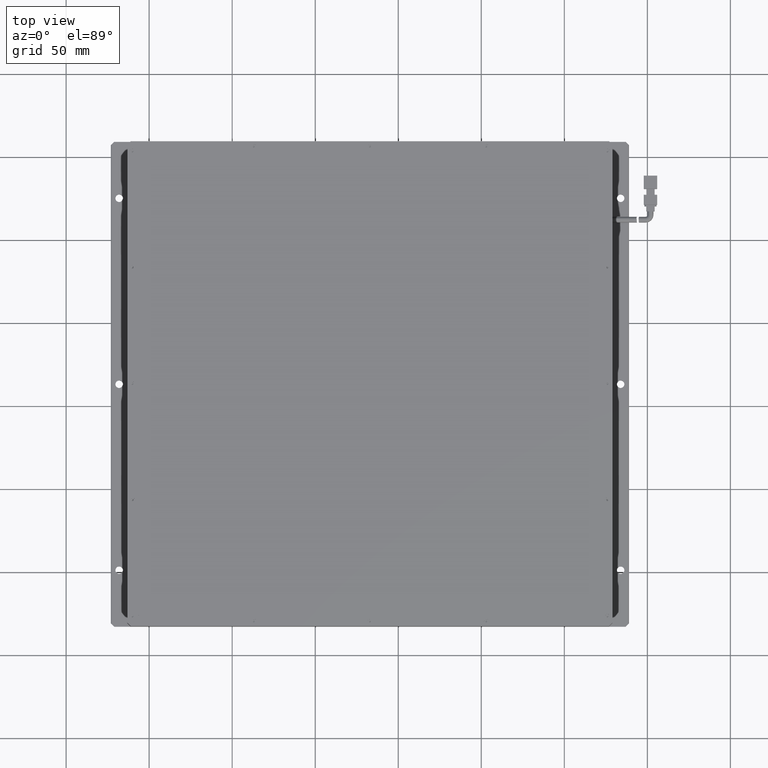
[diagram: clean part render]
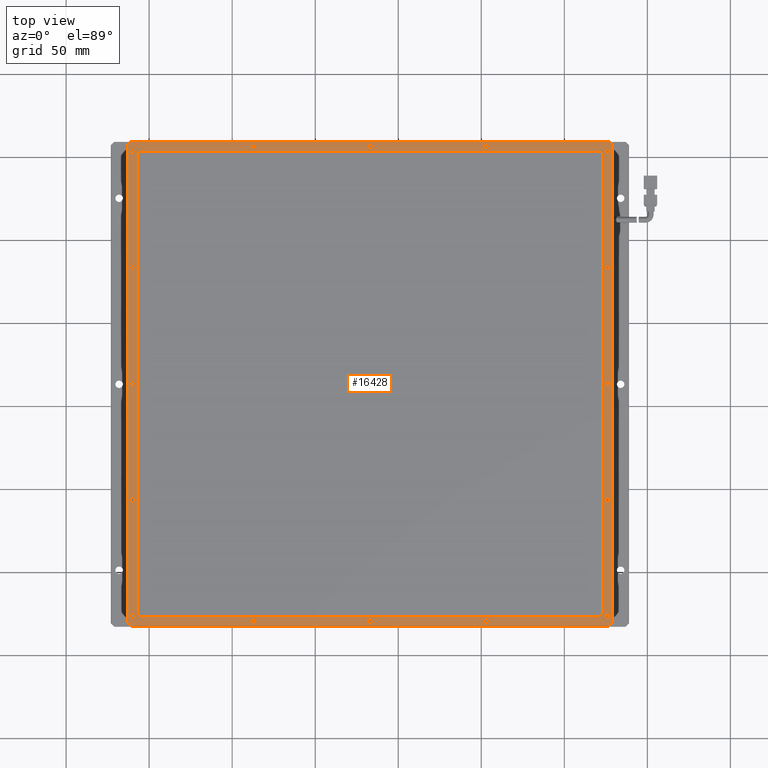
[diagram: same view with one face highlighted and labeled with its STEP entity id]
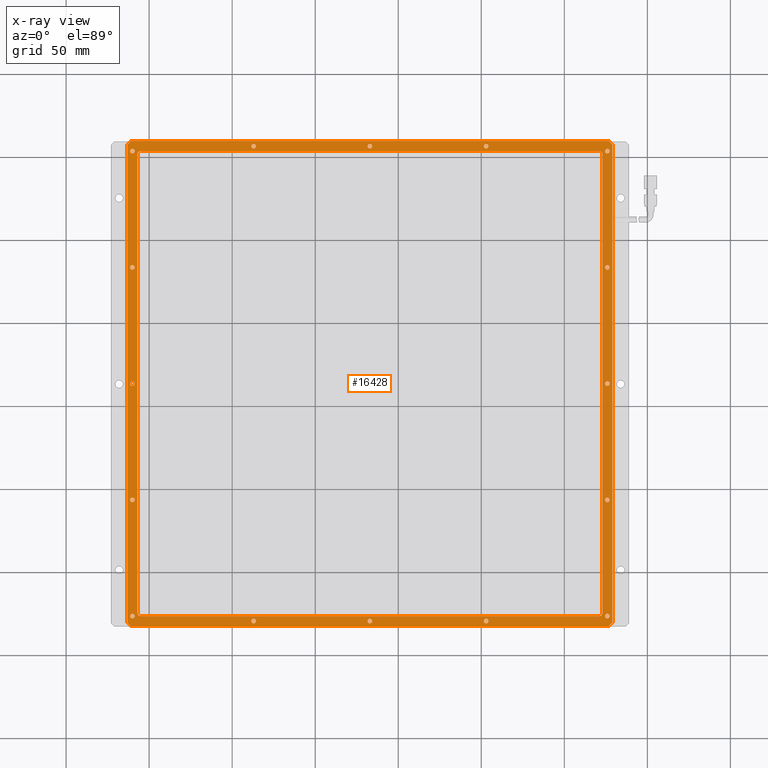
[diagram: x-ray of the same camera — body ghosted, the highlighted face saturated]
A machine part, top view. The second image highlights one B-rep face of the part: STEP entity #16428.
The next image is the same camera in x-ray: the body ghosted, the highlighted face saturated — about 0% of this face is hidden behind the body in this view.
In plain terms, the highlighted planar face has unit normal (0, 0, 1).
Its self-contained STEP definition (entity closure, byte-faithful):
#65 = EDGE_CURVE ( 'NONE', #15558, #3173, #4752, .T. ) ;
#90 = EDGE_LOOP ( 'NONE', ( #13151, #14345 ) ) ;
#107 = EDGE_CURVE ( 'NONE', #5867, #6713, #7100, .T. ) ;
#135 = CARTESIAN_POINT ( 'NONE',  ( 175.9193228736581900, 13.26980456922655100, 10.49999999997180600 ) ) ;
#170 = EDGE_LOOP ( 'NONE', ( #23553, #19507 ) ) ;
#189 = DIRECTION ( 'NONE',  ( 1.000000000000000000, 0.0000000000000000000, 0.0000000000000000000 ) ) ;
#194 = DIRECTION ( 'NONE',  ( 1.000000000000000000, 0.0000000000000000000, 0.0000000000000000000 ) ) ;
#255 = ORIENTED_EDGE ( 'NONE', *, *, #19851, .T. ) ;
#256 = DIRECTION ( 'NONE',  ( 1.000000000000000000, 0.0000000000000000000, 0.0000000000000000000 ) ) ;
#271 = AXIS2_PLACEMENT_3D ( 'NONE', #17010, #4142, #19164 ) ;
#475 = EDGE_LOOP ( 'NONE', ( #22533, #15903 ) ) ;
#571 = ORIENTED_EDGE ( 'NONE', *, *, #7487, .T. ) ;
#792 = CARTESIAN_POINT ( 'NONE',  ( -111.4806771263418900, -126.7301954307734600, 10.49999999997180600 ) ) ;
#796 = CIRCLE ( 'NONE', #19055, 1.399999999999984600 ) ;
#810 = ORIENTED_EDGE ( 'NONE', *, *, #4935, .T. ) ;
#964 = DIRECTION ( 'NONE',  ( -1.000000000000000000, -0.0000000000000000000, -0.0000000000000000000 ) ) ;
#979 = CARTESIAN_POINT ( 'NONE',  ( 174.5193228736581500, -56.73019543077345600, 10.49999999997180600 ) ) ;
#1127 = CARTESIAN_POINT ( 'NONE',  ( -38.48067712634186000, 156.2698045692266400, 10.49999999997180600 ) ) ;
#1288 = EDGE_CURVE ( 'NONE', #23236, #23593, #796, .T. ) ;
#1409 = VECTOR ( 'NONE', #5481, 1000.000000000000000 ) ;
#1427 = DIRECTION ( 'NONE',  ( -0.0000000000000000000, -1.000000000000000000, -0.0000000000000000000 ) ) ;
#1482 = AXIS2_PLACEMENT_3D ( 'NONE', #22583, #9754, #24757 ) ;
#1566 = ORIENTED_EDGE ( 'NONE', *, *, #20308, .T. ) ;
#1774 = DIRECTION ( 'NONE',  ( 1.000000000000000000, 0.0000000000000000000, 0.0000000000000000000 ) ) ;
#1783 = CARTESIAN_POINT ( 'NONE',  ( -113.0806771263418400, -130.7301954307733600, 10.49999999997180600 ) ) ;
#1794 = CARTESIAN_POINT ( 'NONE',  ( 178.9193228736581300, -130.7301954307733600, 10.49999999997180600 ) ) ;
#1916 = DIRECTION ( 'NONE',  ( -0.0000000000000000000, -0.0000000000000000000, -1.000000000000000000 ) ) ;
#1940 = VERTEX_POINT ( 'NONE', #20210 ) ;
#1953 = CARTESIAN_POINT ( 'NONE',  ( 170.9193228736581300, -126.7301954307734100, 10.49999999997180600 ) ) ;
#2080 = EDGE_LOOP ( 'NONE', ( #20955, #25599 ) ) ;
#2109 = ORIENTED_EDGE ( 'NONE', *, *, #14847, .T. ) ;
#2128 = FACE_OUTER_BOUND ( 'NONE', #7449, .T. ) ;
#2147 = ORIENTED_EDGE ( 'NONE', *, *, #26208, .T. ) ;
#2162 = DIRECTION ( 'NONE',  ( 1.000000000000000000, 0.0000000000000000000, 0.0000000000000000000 ) ) ;
#2201 = CARTESIAN_POINT ( 'NONE',  ( -107.0806771263419000, -124.7301954307734100, 10.49999999997180600 ) ) ;
#2219 = DIRECTION ( 'NONE',  ( 0.0000000000000000000, 0.0000000000000000000, 1.000000000000000000 ) ) ;
#2279 = DIRECTION ( 'NONE',  ( 1.000000000000000000, 0.0000000000000000000, 0.0000000000000000000 ) ) ;
#2342 = AXIS2_PLACEMENT_3D ( 'NONE', #135, #15118, #2279 ) ;
#2375 = CIRCLE ( 'NONE', #27503, 1.399999999999984600 ) ;
#2405 = DIRECTION ( 'NONE',  ( 1.000000000000000000, 0.0000000000000000000, 0.0000000000000000000 ) ) ;
#2503 = DIRECTION ( 'NONE',  ( -0.0000000000000000000, -0.0000000000000000000, -1.000000000000000000 ) ) ;
#2545 = CARTESIAN_POINT ( 'NONE',  ( -110.0806771263419000, 153.2698045692265800, 10.49999999997180600 ) ) ;
#2641 = DIRECTION ( 'NONE',  ( -0.0000000000000000000, -0.0000000000000000000, -1.000000000000000000 ) ) ;
#2812 = FACE_BOUND ( 'NONE', #21852, .T. ) ;
#3038 = EDGE_CURVE ( 'NONE', #3173, #15558, #2375, .T. ) ;
#3173 = VERTEX_POINT ( 'NONE', #9770 ) ;
#3221 = CARTESIAN_POINT ( 'NONE',  ( 32.91932287365813200, 156.2698045692266400, 10.49999999997180600 ) ) ;
#3349 = EDGE_CURVE ( 'NONE', #4406, #6596, #5385, .T. ) ;
#3353 = EDGE_CURVE ( 'NONE', #13961, #17208, #11050, .T. ) ;
#3356 = VECTOR ( 'NONE', #7378, 1000.000000000000100 ) ;
#3418 = AXIS2_PLACEMENT_3D ( 'NONE', #25809, #12991, #194 ) ;
#3478 = FACE_BOUND ( 'NONE', #19579, .T. ) ;
#3517 = VERTEX_POINT ( 'NONE', #13419 ) ;
#3526 = ORIENTED_EDGE ( 'NONE', *, *, #24342, .F. ) ;
#3544 = CARTESIAN_POINT ( 'NONE',  ( -108.6806771263419200, -56.73019543077345600, 10.49999999997180600 ) ) ;
#3563 = CARTESIAN_POINT ( 'NONE',  ( 175.9193228736581600, -56.73019543077345600, 10.49999999997180600 ) ) ;
#3570 = CARTESIAN_POINT ( 'NONE',  ( 178.9193228736581300, 157.2698045692266100, 10.49999999997180600 ) ) ;
#3583 = ORIENTED_EDGE ( 'NONE', *, *, #3878, .T. ) ;
#3645 = CARTESIAN_POINT ( 'NONE',  ( -111.0806771263419000, -132.7301954307733900, 10.49999999997180600 ) ) ;
#3693 = CARTESIAN_POINT ( 'NONE',  ( -111.4806771263418900, -56.73019543077345600, 10.49999999997180600 ) ) ;
#3698 = CARTESIAN_POINT ( 'NONE',  ( 175.9193228736581900, 153.2698045692265800, 10.49999999997180600 ) ) ;
#3711 = CARTESIAN_POINT ( 'NONE',  ( 174.5193228736581800, -126.7301954307734600, 10.49999999997180600 ) ) ;
#3727 = EDGE_CURVE ( 'NONE', #21084, #12656, #4675, .T. ) ;
#3730 = DIRECTION ( 'NONE',  ( 0.7071067811865425800, -0.7071067811865525700, -0.0000000000000000000 ) ) ;
#3878 = EDGE_CURVE ( 'NONE', #24389, #23634, #13712, .T. ) ;
#3973 = CARTESIAN_POINT ( 'NONE',  ( 102.9193228736581200, -129.7301954307734800, 10.49999999997180600 ) ) ;
#3977 = DIRECTION ( 'NONE',  ( 0.0000000000000000000, 0.0000000000000000000, 1.000000000000000000 ) ) ;
#4088 = AXIS2_PLACEMENT_3D ( 'NONE', #16839, #3977, #18991 ) ;
#4133 = VERTEX_POINT ( 'NONE', #26171 ) ;
#4142 = DIRECTION ( 'NONE',  ( 0.0000000000000000000, 0.0000000000000000000, 1.000000000000000000 ) ) ;
#4176 = CIRCLE ( 'NONE', #10422, 1.399999999999984600 ) ;
#4279 = VERTEX_POINT ( 'NONE', #21006 ) ;
#4406 = VERTEX_POINT ( 'NONE', #1953 ) ;
#4499 = VECTOR ( 'NONE', #12029, 1000.000000000000000 ) ;
#4675 = CIRCLE ( 'NONE', #9533, 1.399999999999984600 ) ;
#4752 = CIRCLE ( 'NONE', #22378, 1.399999999999984600 ) ;
#4880 = CARTESIAN_POINT ( 'NONE',  ( -110.0806771263419000, 83.26980456922657900, 10.49999999997180600 ) ) ;
#4926 = ORIENTED_EDGE ( 'NONE', *, *, #16945, .T. ) ;
#4935 = EDGE_CURVE ( 'NONE', #20945, #12337, #7637, .T. ) ;
#5073 = CARTESIAN_POINT ( 'NONE',  ( -111.0806771263417300, 159.2698045692266100, 10.49999999997180600 ) ) ;
#5112 = EDGE_LOOP ( 'NONE', ( #20126, #10475, #12967, #17900, #17305, #6923, #3526, #5454 ) ) ;
#5361 = EDGE_CURVE ( 'NONE', #23634, #24389, #27510, .T. ) ;
#5371 = DIRECTION ( 'NONE',  ( 1.000000000000000000, 0.0000000000000000000, 0.0000000000000000000 ) ) ;
#5385 = CIRCLE ( 'NONE', #20688, 2.000000000000001800 ) ;
#5430 = EDGE_CURVE ( 'NONE', #13523, #20550, #27136, .T. ) ;
#5454 = ORIENTED_EDGE ( 'NONE', *, *, #26506, .F. ) ;
#5472 = EDGE_CURVE ( 'NONE', #14740, #16351, #16457, .T. ) ;
#5481 = DIRECTION ( 'NONE',  ( -0.0000000000000000000, -1.000000000000000000, -0.0000000000000000000 ) ) ;
#5525 = EDGE_LOOP ( 'NONE', ( #2109, #17712 ) ) ;
#5625 = EDGE_CURVE ( 'NONE', #27045, #10380, #15407, .T. ) ;
#5642 = AXIS2_PLACEMENT_3D ( 'NONE', #6162, #21149, #8303 ) ;
#5867 = VERTEX_POINT ( 'NONE', #8862 ) ;
#5911 = CARTESIAN_POINT ( 'NONE',  ( -111.4806771263418900, 83.26980456922657900, 10.49999999997180600 ) ) ;
#6080 = VERTEX_POINT ( 'NONE', #3570 ) ;
#6116 = DIRECTION ( 'NONE',  ( 1.000000000000000000, 0.0000000000000000000, 0.0000000000000000000 ) ) ;
#6162 = CARTESIAN_POINT ( 'NONE',  ( 32.91932287365807500, -129.7301954307734800, 10.49999999997180600 ) ) ;
#6263 = CARTESIAN_POINT ( 'NONE',  ( 175.9193228736581900, 83.26980456922657900, 10.49999999997180600 ) ) ;
#6344 = LINE ( 'NONE', #14262, #11354 ) ;
#6459 = EDGE_CURVE ( 'NONE', #24256, #17071, #18075, .T. ) ;
#6471 = EDGE_LOOP ( 'NONE', ( #16628, #22951 ) ) ;
#6542 = CARTESIAN_POINT ( 'NONE',  ( 101.5193228736581300, -129.7301954307734800, 10.49999999997180600 ) ) ;
#6573 = VECTOR ( 'NONE', #16484, 1000.000000000000100 ) ;
#6576 = AXIS2_PLACEMENT_3D ( 'NONE', #2545, #2503, #2405 ) ;
#6581 = VERTEX_POINT ( 'NONE', #22282 ) ;
#6596 = VERTEX_POINT ( 'NONE', #22083 ) ;
#6649 = ORIENTED_EDGE ( 'NONE', *, *, #7406, .T. ) ;
#6667 = CIRCLE ( 'NONE', #16181, 1.399999999999984600 ) ;
#6713 = VERTEX_POINT ( 'NONE', #16545 ) ;
#6923 = ORIENTED_EDGE ( 'NONE', *, *, #21775, .F. ) ;
#7035 = DIRECTION ( 'NONE',  ( 1.000000000000000000, 0.0000000000000000000, 0.0000000000000000000 ) ) ;
#7100 = LINE ( 'NONE', #2201, #1409 ) ;
#7253 = CARTESIAN_POINT ( 'NONE',  ( 102.9193228736581500, 156.2698045692266400, 10.49999999997180600 ) ) ;
#7268 = VERTEX_POINT ( 'NONE', #13346 ) ;
#7378 = DIRECTION ( 'NONE',  ( -0.7071067811865474600, -0.7071067811865474600, -0.0000000000000000000 ) ) ;
#7406 = EDGE_CURVE ( 'NONE', #12337, #20945, #12536, .T. ) ;
#7449 = EDGE_LOOP ( 'NONE', ( #8232, #4926, #25231, #255, #27071, #18978, #10910, #19653 ) ) ;
#7471 = EDGE_LOOP ( 'NONE', ( #6649, #810 ) ) ;
#7487 = EDGE_CURVE ( 'NONE', #15240, #11218, #12845, .T. ) ;
#7500 = CARTESIAN_POINT ( 'NONE',  ( 172.9193228736581300, 151.2698045692266100, 10.49999999997180600 ) ) ;
#7544 = VERTEX_POINT ( 'NONE', #22778 ) ;
#7637 = CIRCLE ( 'NONE', #6576, 1.399999999999984600 ) ;
#7799 = DIRECTION ( 'NONE',  ( -0.0000000000000000000, -0.0000000000000000000, -1.000000000000000000 ) ) ;
#7826 = LINE ( 'NONE', #3645, #17899 ) ;
#7849 = FACE_BOUND ( 'NONE', #15158, .T. ) ;
#7858 = CARTESIAN_POINT ( 'NONE',  ( 175.9193228736581900, 13.26980456922655100, 10.49999999997180600 ) ) ;
#7965 = DIRECTION ( 'NONE',  ( -0.0000000000000000000, -0.0000000000000000000, -1.000000000000000000 ) ) ;
#8017 = AXIS2_PLACEMENT_3D ( 'NONE', #8511, #23493, #10672 ) ;
#8140 = EDGE_CURVE ( 'NONE', #13125, #4133, #7826, .T. ) ;
#8200 = ORIENTED_EDGE ( 'NONE', *, *, #5430, .T. ) ;
#8232 = ORIENTED_EDGE ( 'NONE', *, *, #16215, .T. ) ;
#8303 = DIRECTION ( 'NONE',  ( 1.000000000000000000, 0.0000000000000000000, 0.0000000000000000000 ) ) ;
#8364 = LINE ( 'NONE', #25773, #20094 ) ;
#8392 = DIRECTION ( 'NONE',  ( 1.000000000000000000, 0.0000000000000000000, 0.0000000000000000000 ) ) ;
#8488 = FACE_BOUND ( 'NONE', #7471, .T. ) ;
#8509 = LINE ( 'NONE', #11604, #13575 ) ;
#8511 = CARTESIAN_POINT ( 'NONE',  ( 170.9193228736581300, 151.2698045692266100, 10.49999999997180600 ) ) ;
#8606 = CARTESIAN_POINT ( 'NONE',  ( 177.3193228736581400, -126.7301954307734600, 10.49999999997180600 ) ) ;
#8752 = DIRECTION ( 'NONE',  ( -0.0000000000000000000, -0.0000000000000000000, -1.000000000000000000 ) ) ;
#8817 = CIRCLE ( 'NONE', #9054, 1.399999999999984600 ) ;
#8862 = CARTESIAN_POINT ( 'NONE',  ( -107.0806771263419000, 151.2698045692266100, 10.49999999997180600 ) ) ;
#8982 = AXIS2_PLACEMENT_3D ( 'NONE', #22204, #9366, #24372 ) ;
#8995 = AXIS2_PLACEMENT_3D ( 'NONE', #3563, #2641, #2162 ) ;
#9054 = AXIS2_PLACEMENT_3D ( 'NONE', #3221, #18233, #5371 ) ;
#9112 = VERTEX_POINT ( 'NONE', #20819 ) ;
#9155 = FACE_BOUND ( 'NONE', #21564, .T. ) ;
#9162 = VERTEX_POINT ( 'NONE', #5911 ) ;
#9284 = CIRCLE ( 'NONE', #21417, 1.399999999999984600 ) ;
#9366 = DIRECTION ( 'NONE',  ( -0.0000000000000000000, -0.0000000000000000000, -1.000000000000000000 ) ) ;
#9373 = DIRECTION ( 'NONE',  ( 1.000000000000000000, 0.0000000000000000000, 0.0000000000000000000 ) ) ;
#9464 = CARTESIAN_POINT ( 'NONE',  ( 31.51932287365814700, 156.2698045692266400, 10.49999999997180600 ) ) ;
#9530 = ORIENTED_EDGE ( 'NONE', *, *, #21934, .T. ) ;
#9533 = AXIS2_PLACEMENT_3D ( 'NONE', #16832, #16745, #16649 ) ;
#9754 = DIRECTION ( 'NONE',  ( -0.0000000000000000000, -0.0000000000000000000, -1.000000000000000000 ) ) ;
#9770 = CARTESIAN_POINT ( 'NONE',  ( 174.5193228736582100, 153.2698045692265800, 10.49999999997180600 ) ) ;
#9774 = VERTEX_POINT ( 'NONE', #18837 ) ;
#9828 = CIRCLE ( 'NONE', #12604, 1.399999999999984600 ) ;
#9841 = FACE_BOUND ( 'NONE', #5525, .T. ) ;
#9867 = CARTESIAN_POINT ( 'NONE',  ( 178.9193228736581300, 159.2698045692265800, 10.49999999997180600 ) ) ;
#9942 = EDGE_CURVE ( 'NONE', #22384, #21103, #6667, .T. ) ;
#10002 = DIRECTION ( 'NONE',  ( 1.000000000000000000, 0.0000000000000000000, 0.0000000000000000000 ) ) ;
#10068 = EDGE_LOOP ( 'NONE', ( #21146, #19674 ) ) ;
#10105 = VECTOR ( 'NONE', #21093, 1000.000000000000000 ) ;
#10380 = VERTEX_POINT ( 'NONE', #20449 ) ;
#10422 = AXIS2_PLACEMENT_3D ( 'NONE', #12391, #27392, #14554 ) ;
#10475 = ORIENTED_EDGE ( 'NONE', *, *, #3349, .F. ) ;
#10546 = CARTESIAN_POINT ( 'NONE',  ( 176.9193228736581000, 159.2698045692266100, 10.49999999997180600 ) ) ;
#10662 = EDGE_CURVE ( 'NONE', #15873, #13181, #16004, .T. ) ;
#10672 = DIRECTION ( 'NONE',  ( 1.000000000000000000, 0.0000000000000000000, 0.0000000000000000000 ) ) ;
#10836 = CARTESIAN_POINT ( 'NONE',  ( 34.31932287365805900, -129.7301954307734800, 10.49999999997180600 ) ) ;
#10843 = LINE ( 'NONE', #9867, #4499 ) ;
#10860 = AXIS2_PLACEMENT_3D ( 'NONE', #15068, #2219, #17236 ) ;
#10898 = ORIENTED_EDGE ( 'NONE', *, *, #15715, .T. ) ;
#10910 = ORIENTED_EDGE ( 'NONE', *, *, #14220, .T. ) ;
#10928 = AXIS2_PLACEMENT_3D ( 'NONE', #27535, #27387, #27346 ) ;
#11050 = CIRCLE ( 'NONE', #23518, 1.399999999999984600 ) ;
#11078 = EDGE_CURVE ( 'NONE', #17208, #13961, #4176, .T. ) ;
#11112 = CARTESIAN_POINT ( 'NONE',  ( -35.68067712634189100, 156.2698045692266400, 10.49999999997180600 ) ) ;
#11218 = VERTEX_POINT ( 'NONE', #8606 ) ;
#11224 = CIRCLE ( 'NONE', #21989, 1.399999999999984600 ) ;
#11238 = ORIENTED_EDGE ( 'NONE', *, *, #22178, .T. ) ;
#11354 = VECTOR ( 'NONE', #1427, 1000.000000000000000 ) ;
#11436 = VERTEX_POINT ( 'NONE', #11622 ) ;
#11490 = VERTEX_POINT ( 'NONE', #7500 ) ;
#11582 = EDGE_CURVE ( 'NONE', #10380, #27045, #9828, .T. ) ;
#11604 = CARTESIAN_POINT ( 'NONE',  ( -113.0806771263418400, 159.2698045692265800, 10.49999999997180600 ) ) ;
#11622 = CARTESIAN_POINT ( 'NONE',  ( -105.0806771263419000, -126.7301954307734100, 10.49999999997180600 ) ) ;
#11858 = EDGE_CURVE ( 'NONE', #23593, #23236, #13156, .T. ) ;
#12029 = DIRECTION ( 'NONE',  ( 0.0000000000000000000, 1.000000000000000000, 0.0000000000000000000 ) ) ;
#12186 = AXIS2_PLACEMENT_3D ( 'NONE', #16350, #16298, #16258 ) ;
#12200 = CARTESIAN_POINT ( 'NONE',  ( 175.9193228736581600, -126.7301954307734600, 10.49999999997180600 ) ) ;
#12337 = VERTEX_POINT ( 'NONE', #22327 ) ;
#12385 = ORIENTED_EDGE ( 'NONE', *, *, #26264, .T. ) ;
#12391 = CARTESIAN_POINT ( 'NONE',  ( -37.08067712634193200, -129.7301954307734800, 10.49999999997180600 ) ) ;
#12452 = CIRCLE ( 'NONE', #10860, 2.000000000000001800 ) ;
#12468 = DIRECTION ( 'NONE',  ( -0.0000000000000000000, -0.0000000000000000000, -1.000000000000000000 ) ) ;
#12536 = CIRCLE ( 'NONE', #1482, 1.399999999999984600 ) ;
#12555 = CARTESIAN_POINT ( 'NONE',  ( 102.9193228736581200, -129.7301954307734800, 10.49999999997180600 ) ) ;
#12604 = AXIS2_PLACEMENT_3D ( 'NONE', #20803, #7965, #22928 ) ;
#12633 = CIRCLE ( 'NONE', #27394, 1.399999999999984600 ) ;
#12656 = VERTEX_POINT ( 'NONE', #12832 ) ;
#12832 = CARTESIAN_POINT ( 'NONE',  ( 177.3193228736581700, 83.26980456922657900, 10.49999999997180600 ) ) ;
#12845 = CIRCLE ( 'NONE', #20164, 1.399999999999984600 ) ;
#12872 = VECTOR ( 'NONE', #22507, 1000.000000000000000 ) ;
#12951 = DIRECTION ( 'NONE',  ( -1.000000000000000000, -0.0000000000000000000, -0.0000000000000000000 ) ) ;
#12967 = ORIENTED_EDGE ( 'NONE', *, *, #16044, .F. ) ;
#12982 = DIRECTION ( 'NONE',  ( -0.0000000000000000000, -0.0000000000000000000, -1.000000000000000000 ) ) ;
#12991 = DIRECTION ( 'NONE',  ( -0.0000000000000000000, -0.0000000000000000000, -1.000000000000000000 ) ) ;
#13125 = VERTEX_POINT ( 'NONE', #1783 ) ;
#13151 = ORIENTED_EDGE ( 'NONE', *, *, #25430, .T. ) ;
#13156 = CIRCLE ( 'NONE', #14960, 1.399999999999984600 ) ;
#13181 = VERTEX_POINT ( 'NONE', #23203 ) ;
#13346 = CARTESIAN_POINT ( 'NONE',  ( -113.0806771263418100, 157.2698045692265800, 10.49999999997180600 ) ) ;
#13419 = CARTESIAN_POINT ( 'NONE',  ( 176.9193228736582200, -132.7301954307733600, 10.49999999997180600 ) ) ;
#13523 = VERTEX_POINT ( 'NONE', #1127 ) ;
#13537 = FACE_BOUND ( 'NONE', #90, .T. ) ;
#13575 = VECTOR ( 'NONE', #964, 1000.000000000000000 ) ;
#13637 = ORIENTED_EDGE ( 'NONE', *, *, #10662, .T. ) ;
#13712 = CIRCLE ( 'NONE', #8995, 1.400000000000012300 ) ;
#13815 = ORIENTED_EDGE ( 'NONE', *, *, #5361, .T. ) ;
#13920 = DIRECTION ( 'NONE',  ( -0.0000000000000000000, -0.0000000000000000000, -1.000000000000000000 ) ) ;
#13961 = VERTEX_POINT ( 'NONE', #15595 ) ;
#14049 = CIRCLE ( 'NONE', #8982, 1.399999999999984600 ) ;
#14217 = FACE_BOUND ( 'NONE', #16302, .T. ) ;
#14220 = EDGE_CURVE ( 'NONE', #7268, #13125, #6344, .T. ) ;
#14262 = CARTESIAN_POINT ( 'NONE',  ( -113.0806771263418400, 159.2698045692265800, 10.49999999997180600 ) ) ;
#14345 = ORIENTED_EDGE ( 'NONE', *, *, #3727, .T. ) ;
#14367 = DIRECTION ( 'NONE',  ( 1.000000000000000000, 0.0000000000000000000, 0.0000000000000000000 ) ) ;
#14493 = ORIENTED_EDGE ( 'NONE', *, *, #18306, .T. ) ;
#14554 = DIRECTION ( 'NONE',  ( 1.000000000000000000, 0.0000000000000000000, 0.0000000000000000000 ) ) ;
#14608 = CARTESIAN_POINT ( 'NONE',  ( -111.4806771263418900, 153.2698045692265800, 10.49999999997180600 ) ) ;
#14616 = DIRECTION ( 'NONE',  ( -0.0000000000000000000, -0.0000000000000000000, -1.000000000000000000 ) ) ;
#14736 = DIRECTION ( 'NONE',  ( 1.000000000000000000, 0.0000000000000000000, 0.0000000000000000000 ) ) ;
#14740 = VERTEX_POINT ( 'NONE', #3544 ) ;
#14842 = CARTESIAN_POINT ( 'NONE',  ( 175.9193228736581900, 153.2698045692265800, 10.49999999997180600 ) ) ;
#14847 = EDGE_CURVE ( 'NONE', #17071, #24256, #19040, .T. ) ;
#14868 = VERTEX_POINT ( 'NONE', #10546 ) ;
#14891 = FACE_BOUND ( 'NONE', #26946, .T. ) ;
#14895 = VERTEX_POINT ( 'NONE', #25533 ) ;
#14960 = AXIS2_PLACEMENT_3D ( 'NONE', #25805, #12982, #189 ) ;
#15068 = CARTESIAN_POINT ( 'NONE',  ( -105.0806771263419000, -124.7301954307734100, 10.49999999997180600 ) ) ;
#15118 = DIRECTION ( 'NONE',  ( -0.0000000000000000000, -0.0000000000000000000, -1.000000000000000000 ) ) ;
#15158 = EDGE_LOOP ( 'NONE', ( #25538, #19994 ) ) ;
#15240 = VERTEX_POINT ( 'NONE', #3711 ) ;
#15407 = CIRCLE ( 'NONE', #12186, 1.399999999999984600 ) ;
#15558 = VERTEX_POINT ( 'NONE', #17775 ) ;
#15595 = CARTESIAN_POINT ( 'NONE',  ( -38.48067712634191700, -129.7301954307734800, 10.49999999997180600 ) ) ;
#15715 = EDGE_CURVE ( 'NONE', #20550, #13523, #27367, .T. ) ;
#15840 = CARTESIAN_POINT ( 'NONE',  ( 104.3193228736580900, -129.7301954307734800, 10.49999999997180600 ) ) ;
#15843 = EDGE_CURVE ( 'NONE', #21103, #22384, #11224, .T. ) ;
#15873 = VERTEX_POINT ( 'NONE', #25479 ) ;
#15903 = ORIENTED_EDGE ( 'NONE', *, *, #25511, .T. ) ;
#16004 = CIRCLE ( 'NONE', #3418, 1.399999999999984600 ) ;
#16044 = EDGE_CURVE ( 'NONE', #11436, #4406, #23276, .T. ) ;
#16180 = EDGE_CURVE ( 'NONE', #14868, #23597, #8509, .T. ) ;
#16181 = AXIS2_PLACEMENT_3D ( 'NONE', #3973, #18984, #6116 ) ;
#16215 = EDGE_CURVE ( 'NONE', #4133, #3517, #19303, .T. ) ;
#16258 = DIRECTION ( 'NONE',  ( 1.000000000000000000, 0.0000000000000000000, 0.0000000000000000000 ) ) ;
#16259 = EDGE_CURVE ( 'NONE', #6581, #6080, #10843, .T. ) ;
#16298 = DIRECTION ( 'NONE',  ( -0.0000000000000000000, -0.0000000000000000000, -1.000000000000000000 ) ) ;
#16302 = EDGE_LOOP ( 'NONE', ( #11238, #9530 ) ) ;
#16350 = CARTESIAN_POINT ( 'NONE',  ( -110.0806771263419000, 13.26980456922655100, 10.49999999997180600 ) ) ;
#16351 = VERTEX_POINT ( 'NONE', #3693 ) ;
#16428 = ADVANCED_FACE ( 'NONE', ( #20592, #9841, #26942, #26265, #14891, #9155, #3478, #25591, #19930, #14217, #8488, #2812, #24937, #19272, #13537, #7849, #2128, #24235 ), #21019, .T. ) ;
#16457 = CIRCLE ( 'NONE', #21334, 1.399999999999984600 ) ;
#16484 = DIRECTION ( 'NONE',  ( -0.7071067811865474600, 0.7071067811865474600, -0.0000000000000000000 ) ) ;
#16545 = CARTESIAN_POINT ( 'NONE',  ( -107.0806771263419000, -124.7301954307734100, 10.49999999997180600 ) ) ;
#16628 = ORIENTED_EDGE ( 'NONE', *, *, #11582, .T. ) ;
#16649 = DIRECTION ( 'NONE',  ( 1.000000000000000000, 0.0000000000000000000, 0.0000000000000000000 ) ) ;
#16745 = DIRECTION ( 'NONE',  ( -0.0000000000000000000, -0.0000000000000000000, -1.000000000000000000 ) ) ;
#16832 = CARTESIAN_POINT ( 'NONE',  ( 175.9193228736581900, 83.26980456922657900, 10.49999999997180600 ) ) ;
#16839 = CARTESIAN_POINT ( 'NONE',  ( -113.0806771263418400, -132.7301954307733900, 10.49999999997180600 ) ) ;
#16945 = EDGE_CURVE ( 'NONE', #3517, #6581, #21500, .T. ) ;
#16953 = VECTOR ( 'NONE', #19790, 1000.000000000000000 ) ;
#16988 = AXIS2_PLACEMENT_3D ( 'NONE', #4880, #19886, #7035 ) ;
#17010 = CARTESIAN_POINT ( 'NONE',  ( -105.0806771263419000, 151.2698045692266100, 10.49999999997180600 ) ) ;
#17071 = VERTEX_POINT ( 'NONE', #10836 ) ;
#17208 = VERTEX_POINT ( 'NONE', #24227 ) ;
#17236 = DIRECTION ( 'NONE',  ( 1.000000000000000000, 0.0000000000000000000, 0.0000000000000000000 ) ) ;
#17305 = ORIENTED_EDGE ( 'NONE', *, *, #107, .F. ) ;
#17314 = LINE ( 'NONE', #22800, #6573 ) ;
#17381 = EDGE_CURVE ( 'NONE', #1940, #4279, #22504, .T. ) ;
#17577 = EDGE_LOOP ( 'NONE', ( #10898, #8200 ) ) ;
#17712 = ORIENTED_EDGE ( 'NONE', *, *, #6459, .T. ) ;
#17775 = CARTESIAN_POINT ( 'NONE',  ( 177.3193228736581700, 153.2698045692265800, 10.49999999997180600 ) ) ;
#17895 = AXIS2_PLACEMENT_3D ( 'NONE', #25302, #12468, #27473 ) ;
#17899 = VECTOR ( 'NONE', #3730, 1000.000000000000000 ) ;
#17900 = ORIENTED_EDGE ( 'NONE', *, *, #21062, .F. ) ;
#17940 = CIRCLE ( 'NONE', #25400, 1.399999999999984600 ) ;
#18056 = EDGE_CURVE ( 'NONE', #4279, #1940, #22757, .T. ) ;
#18075 = CIRCLE ( 'NONE', #10928, 1.399999999999984600 ) ;
#18233 = DIRECTION ( 'NONE',  ( -0.0000000000000000000, -0.0000000000000000000, -1.000000000000000000 ) ) ;
#18306 = EDGE_CURVE ( 'NONE', #14895, #24567, #14049, .T. ) ;
#18333 = DIRECTION ( 'NONE',  ( -0.0000000000000000000, -0.0000000000000000000, -1.000000000000000000 ) ) ;
#18434 = DIRECTION ( 'NONE',  ( 1.000000000000000000, 0.0000000000000000000, 0.0000000000000000000 ) ) ;
#18497 = AXIS2_PLACEMENT_3D ( 'NONE', #20062, #19995, #19961 ) ;
#18837 = CARTESIAN_POINT ( 'NONE',  ( 170.9193228736581300, 153.2698045692266100, 10.49999999997180600 ) ) ;
#18978 = ORIENTED_EDGE ( 'NONE', *, *, #24024, .T. ) ;
#18982 = CARTESIAN_POINT ( 'NONE',  ( -110.0806771263419000, -126.7301954307734600, 10.49999999997180600 ) ) ;
#18984 = DIRECTION ( 'NONE',  ( -0.0000000000000000000, -0.0000000000000000000, -1.000000000000000000 ) ) ;
#18991 = DIRECTION ( 'NONE',  ( 1.000000000000000000, 0.0000000000000000000, 0.0000000000000000000 ) ) ;
#19003 = CARTESIAN_POINT ( 'NONE',  ( 31.51932287365809400, -129.7301954307734800, 10.49999999997180600 ) ) ;
#19040 = CIRCLE ( 'NONE', #5642, 1.399999999999984600 ) ;
#19055 = AXIS2_PLACEMENT_3D ( 'NONE', #18982, #18333, #18434 ) ;
#19164 = DIRECTION ( 'NONE',  ( 1.000000000000000000, 0.0000000000000000000, 0.0000000000000000000 ) ) ;
#19272 = FACE_BOUND ( 'NONE', #2080, .T. ) ;
#19303 = LINE ( 'NONE', #22377, #12872 ) ;
#19334 = DIRECTION ( 'NONE',  ( 1.000000000000000000, 0.0000000000000000000, 0.0000000000000000000 ) ) ;
#19366 = DIRECTION ( 'NONE',  ( -0.0000000000000000000, -0.0000000000000000000, -1.000000000000000000 ) ) ;
#19415 = CARTESIAN_POINT ( 'NONE',  ( -110.0806771263419000, -56.73019543077345600, 10.49999999997180600 ) ) ;
#19507 = ORIENTED_EDGE ( 'NONE', *, *, #3353, .T. ) ;
#19535 = CARTESIAN_POINT ( 'NONE',  ( 177.3193228736581700, -56.73019543077345600, 10.49999999997180600 ) ) ;
#19579 = EDGE_LOOP ( 'NONE', ( #27228, #22285 ) ) ;
#19653 = ORIENTED_EDGE ( 'NONE', *, *, #8140, .T. ) ;
#19674 = ORIENTED_EDGE ( 'NONE', *, *, #15843, .T. ) ;
#19790 = DIRECTION ( 'NONE',  ( 1.000000000000000000, -0.0000000000000000000, -0.0000000000000000000 ) ) ;
#19851 = EDGE_CURVE ( 'NONE', #6080, #14868, #17314, .T. ) ;
#19886 = DIRECTION ( 'NONE',  ( -0.0000000000000000000, -0.0000000000000000000, -1.000000000000000000 ) ) ;
#19930 = FACE_BOUND ( 'NONE', #6471, .T. ) ;
#19961 = DIRECTION ( 'NONE',  ( 1.000000000000000000, 0.0000000000000000000, 0.0000000000000000000 ) ) ;
#19994 = ORIENTED_EDGE ( 'NONE', *, *, #3038, .T. ) ;
#19995 = DIRECTION ( 'NONE',  ( -0.0000000000000000000, -0.0000000000000000000, -1.000000000000000000 ) ) ;
#20062 = CARTESIAN_POINT ( 'NONE',  ( -37.08067712634187500, 156.2698045692266400, 10.49999999997180600 ) ) ;
#20094 = VECTOR ( 'NONE', #12951, 1000.000000000000000 ) ;
#20115 = CIRCLE ( 'NONE', #271, 2.000000000000001800 ) ;
#20126 = ORIENTED_EDGE ( 'NONE', *, *, #21790, .F. ) ;
#20164 = AXIS2_PLACEMENT_3D ( 'NONE', #12200, #27189, #14367 ) ;
#20169 = DIRECTION ( 'NONE',  ( 1.000000000000000000, 0.0000000000000000000, 0.0000000000000000000 ) ) ;
#20210 = CARTESIAN_POINT ( 'NONE',  ( 174.5193228736582100, 13.26980456922655100, 10.49999999997180600 ) ) ;
#20308 = EDGE_CURVE ( 'NONE', #11218, #15240, #24602, .T. ) ;
#20449 = CARTESIAN_POINT ( 'NONE',  ( -108.6806771263419200, 13.26980456922655100, 10.49999999997180600 ) ) ;
#20550 = VERTEX_POINT ( 'NONE', #11112 ) ;
#20592 = FACE_BOUND ( 'NONE', #170, .T. ) ;
#20642 = CARTESIAN_POINT ( 'NONE',  ( -37.08067712634187500, 156.2698045692266400, 10.49999999997180600 ) ) ;
#20688 = AXIS2_PLACEMENT_3D ( 'NONE', #21738, #21646, #21553 ) ;
#20803 = CARTESIAN_POINT ( 'NONE',  ( -110.0806771263419000, 13.26980456922655100, 10.49999999997180600 ) ) ;
#20819 = CARTESIAN_POINT ( 'NONE',  ( -105.0806771263419000, 153.2698045692266100, 10.49999999997180600 ) ) ;
#20831 = CARTESIAN_POINT ( 'NONE',  ( -108.6806771263419200, -126.7301954307734600, 10.49999999997180600 ) ) ;
#20945 = VERTEX_POINT ( 'NONE', #14608 ) ;
#20955 = ORIENTED_EDGE ( 'NONE', *, *, #18056, .T. ) ;
#21006 = CARTESIAN_POINT ( 'NONE',  ( 177.3193228736581700, 13.26980456922655100, 10.49999999997180600 ) ) ;
#21019 = PLANE ( 'NONE',  #4088 ) ;
#21062 = EDGE_CURVE ( 'NONE', #6713, #11436, #12452, .T. ) ;
#21084 = VERTEX_POINT ( 'NONE', #23644 ) ;
#21093 = DIRECTION ( 'NONE',  ( 0.7071067811865425800, 0.7071067811865525700, -0.0000000000000000000 ) ) ;
#21103 = VERTEX_POINT ( 'NONE', #6542 ) ;
#21146 = ORIENTED_EDGE ( 'NONE', *, *, #9942, .T. ) ;
#21149 = DIRECTION ( 'NONE',  ( -0.0000000000000000000, -0.0000000000000000000, -1.000000000000000000 ) ) ;
#21192 = DIRECTION ( 'NONE',  ( -0.0000000000000000000, -0.0000000000000000000, -1.000000000000000000 ) ) ;
#21201 = CIRCLE ( 'NONE', #8017, 2.000000000000001800 ) ;
#21241 = DIRECTION ( 'NONE',  ( -0.0000000000000000000, -0.0000000000000000000, -1.000000000000000000 ) ) ;
#21275 = CARTESIAN_POINT ( 'NONE',  ( 172.9193228736581300, 151.2698045692266100, 10.49999999997180600 ) ) ;
#21290 = CARTESIAN_POINT ( 'NONE',  ( -37.08067712634193200, -129.7301954307734800, 10.49999999997180600 ) ) ;
#21334 = AXIS2_PLACEMENT_3D ( 'NONE', #19415, #19366, #19334 ) ;
#21417 = AXIS2_PLACEMENT_3D ( 'NONE', #6263, #21241, #8392 ) ;
#21500 = LINE ( 'NONE', #1794, #10105 ) ;
#21553 = DIRECTION ( 'NONE',  ( 1.000000000000000000, 0.0000000000000000000, 0.0000000000000000000 ) ) ;
#21564 = EDGE_LOOP ( 'NONE', ( #2147, #13637 ) ) ;
#21600 = CARTESIAN_POINT ( 'NONE',  ( -110.0806771263419000, -56.73019543077345600, 10.49999999997180600 ) ) ;
#21646 = DIRECTION ( 'NONE',  ( 0.0000000000000000000, 0.0000000000000000000, 1.000000000000000000 ) ) ;
#21738 = CARTESIAN_POINT ( 'NONE',  ( 170.9193228736581300, -124.7301954307734100, 10.49999999997180600 ) ) ;
#21775 = EDGE_CURVE ( 'NONE', #9112, #5867, #20115, .T. ) ;
#21790 = EDGE_CURVE ( 'NONE', #6596, #11490, #25767, .T. ) ;
#21852 = EDGE_LOOP ( 'NONE', ( #1566, #571 ) ) ;
#21934 = EDGE_CURVE ( 'NONE', #9162, #7544, #26426, .T. ) ;
#21989 = AXIS2_PLACEMENT_3D ( 'NONE', #12555, #27565, #14736 ) ;
#22083 = CARTESIAN_POINT ( 'NONE',  ( 172.9193228736581300, -124.7301954307734100, 10.49999999997180600 ) ) ;
#22178 = EDGE_CURVE ( 'NONE', #7544, #9162, #12633, .T. ) ;
#22204 = CARTESIAN_POINT ( 'NONE',  ( 32.91932287365813200, 156.2698045692266400, 10.49999999997180600 ) ) ;
#22216 = DIRECTION ( 'NONE',  ( -0.0000000000000000000, -0.0000000000000000000, -1.000000000000000000 ) ) ;
#22282 = CARTESIAN_POINT ( 'NONE',  ( 178.9193228736581000, -130.7301954307734200, 10.49999999997180600 ) ) ;
#22285 = ORIENTED_EDGE ( 'NONE', *, *, #11858, .T. ) ;
#22325 = AXIS2_PLACEMENT_3D ( 'NONE', #21600, #8752, #23739 ) ;
#22327 = CARTESIAN_POINT ( 'NONE',  ( -108.6806771263419200, 153.2698045692265800, 10.49999999997180600 ) ) ;
#22347 = CARTESIAN_POINT ( 'NONE',  ( -113.0806771263418400, 157.2698045692265800, 10.49999999997180600 ) ) ;
#22377 = CARTESIAN_POINT ( 'NONE',  ( -113.0806771263418400, -132.7301954307733900, 10.49999999997180600 ) ) ;
#22378 = AXIS2_PLACEMENT_3D ( 'NONE', #3698, #1916, #256 ) ;
#22384 = VERTEX_POINT ( 'NONE', #15840 ) ;
#22504 = CIRCLE ( 'NONE', #27101, 1.399999999999984600 ) ;
#22507 = DIRECTION ( 'NONE',  ( 1.000000000000000000, -0.0000000000000000000, -0.0000000000000000000 ) ) ;
#22528 = AXIS2_PLACEMENT_3D ( 'NONE', #20642, #7799, #22775 ) ;
#22533 = ORIENTED_EDGE ( 'NONE', *, *, #5472, .T. ) ;
#22583 = CARTESIAN_POINT ( 'NONE',  ( -110.0806771263419000, 153.2698045692265800, 10.49999999997180600 ) ) ;
#22757 = CIRCLE ( 'NONE', #2342, 1.399999999999984600 ) ;
#22775 = DIRECTION ( 'NONE',  ( 1.000000000000000000, 0.0000000000000000000, 0.0000000000000000000 ) ) ;
#22778 = CARTESIAN_POINT ( 'NONE',  ( -108.6806771263419200, 83.26980456922657900, 10.49999999997180600 ) ) ;
#22800 = CARTESIAN_POINT ( 'NONE',  ( 176.9193228736581900, 159.2698045692265800, 10.49999999997180600 ) ) ;
#22821 = DIRECTION ( 'NONE',  ( -0.0000000000000000000, -0.0000000000000000000, -1.000000000000000000 ) ) ;
#22928 = DIRECTION ( 'NONE',  ( 1.000000000000000000, 0.0000000000000000000, 0.0000000000000000000 ) ) ;
#22951 = ORIENTED_EDGE ( 'NONE', *, *, #5625, .T. ) ;
#23131 = DIRECTION ( 'NONE',  ( 1.000000000000000000, 0.0000000000000000000, 0.0000000000000000000 ) ) ;
#23161 = DIRECTION ( 'NONE',  ( -0.0000000000000000000, -0.0000000000000000000, -1.000000000000000000 ) ) ;
#23203 = CARTESIAN_POINT ( 'NONE',  ( 104.3193228736581200, 156.2698045692266400, 10.49999999997180600 ) ) ;
#23215 = CARTESIAN_POINT ( 'NONE',  ( 175.9193228736581600, -56.73019543077345600, 10.49999999997180600 ) ) ;
#23236 = VERTEX_POINT ( 'NONE', #20831 ) ;
#23276 = LINE ( 'NONE', #26119, #16953 ) ;
#23424 = DIRECTION ( 'NONE',  ( -0.0000000000000000000, 1.000000000000000000, -0.0000000000000000000 ) ) ;
#23493 = DIRECTION ( 'NONE',  ( 0.0000000000000000000, 0.0000000000000000000, 1.000000000000000000 ) ) ;
#23518 = AXIS2_PLACEMENT_3D ( 'NONE', #21290, #21192, #20169 ) ;
#23553 = ORIENTED_EDGE ( 'NONE', *, *, #11078, .T. ) ;
#23593 = VERTEX_POINT ( 'NONE', #792 ) ;
#23597 = VERTEX_POINT ( 'NONE', #5073 ) ;
#23634 = VERTEX_POINT ( 'NONE', #979 ) ;
#23644 = CARTESIAN_POINT ( 'NONE',  ( 174.5193228736582100, 83.26980456922657900, 10.49999999997180600 ) ) ;
#23739 = DIRECTION ( 'NONE',  ( 1.000000000000000000, 0.0000000000000000000, 0.0000000000000000000 ) ) ;
#24024 = EDGE_CURVE ( 'NONE', #23597, #7268, #25461, .T. ) ;
#24227 = CARTESIAN_POINT ( 'NONE',  ( -35.68067712634194800, -129.7301954307734800, 10.49999999997180600 ) ) ;
#24235 = FACE_BOUND ( 'NONE', #5112, .T. ) ;
#24256 = VERTEX_POINT ( 'NONE', #19003 ) ;
#24342 = EDGE_CURVE ( 'NONE', #9774, #9112, #8364, .T. ) ;
#24372 = DIRECTION ( 'NONE',  ( 1.000000000000000000, 0.0000000000000000000, 0.0000000000000000000 ) ) ;
#24389 = VERTEX_POINT ( 'NONE', #19535 ) ;
#24567 = VERTEX_POINT ( 'NONE', #9464 ) ;
#24602 = CIRCLE ( 'NONE', #17895, 1.399999999999984600 ) ;
#24705 = CIRCLE ( 'NONE', #22325, 1.399999999999984600 ) ;
#24757 = DIRECTION ( 'NONE',  ( 1.000000000000000000, 0.0000000000000000000, 0.0000000000000000000 ) ) ;
#24937 = FACE_BOUND ( 'NONE', #26203, .T. ) ;
#25092 = CARTESIAN_POINT ( 'NONE',  ( -111.4806771263418900, 13.26980456922655100, 10.49999999997180600 ) ) ;
#25111 = VECTOR ( 'NONE', #23424, 1000.000000000000000 ) ;
#25231 = ORIENTED_EDGE ( 'NONE', *, *, #16259, .T. ) ;
#25302 = CARTESIAN_POINT ( 'NONE',  ( 175.9193228736581600, -126.7301954307734600, 10.49999999997180600 ) ) ;
#25400 = AXIS2_PLACEMENT_3D ( 'NONE', #7253, #22216, #9373 ) ;
#25430 = EDGE_CURVE ( 'NONE', #12656, #21084, #9284, .T. ) ;
#25461 = LINE ( 'NONE', #22347, #3356 ) ;
#25479 = CARTESIAN_POINT ( 'NONE',  ( 101.5193228736581500, 156.2698045692266400, 10.49999999997180600 ) ) ;
#25511 = EDGE_CURVE ( 'NONE', #16351, #14740, #24705, .T. ) ;
#25533 = CARTESIAN_POINT ( 'NONE',  ( 34.31932287365811600, 156.2698045692266400, 10.49999999997180600 ) ) ;
#25538 = ORIENTED_EDGE ( 'NONE', *, *, #65, .T. ) ;
#25591 = FACE_BOUND ( 'NONE', #475, .T. ) ;
#25599 = ORIENTED_EDGE ( 'NONE', *, *, #17381, .T. ) ;
#25767 = LINE ( 'NONE', #21275, #25111 ) ;
#25773 = CARTESIAN_POINT ( 'NONE',  ( -105.0806771263419000, 153.2698045692266100, 10.49999999997180600 ) ) ;
#25805 = CARTESIAN_POINT ( 'NONE',  ( -110.0806771263419000, -126.7301954307734600, 10.49999999997180600 ) ) ;
#25809 = CARTESIAN_POINT ( 'NONE',  ( 102.9193228736581500, 156.2698045692266400, 10.49999999997180600 ) ) ;
#26119 = CARTESIAN_POINT ( 'NONE',  ( 170.9193228736581300, -126.7301954307734100, 10.49999999997180600 ) ) ;
#26162 = AXIS2_PLACEMENT_3D ( 'NONE', #23215, #23161, #23131 ) ;
#26171 = CARTESIAN_POINT ( 'NONE',  ( -111.0806771263419000, -132.7301954307733900, 10.49999999997180600 ) ) ;
#26203 = EDGE_LOOP ( 'NONE', ( #3583, #13815 ) ) ;
#26208 = EDGE_CURVE ( 'NONE', #13181, #15873, #17940, .T. ) ;
#26264 = EDGE_CURVE ( 'NONE', #24567, #14895, #8817, .T. ) ;
#26265 = FACE_BOUND ( 'NONE', #17577, .T. ) ;
#26426 = CIRCLE ( 'NONE', #16988, 1.399999999999984600 ) ;
#26506 = EDGE_CURVE ( 'NONE', #11490, #9774, #21201, .T. ) ;
#26942 = FACE_BOUND ( 'NONE', #10068, .T. ) ;
#26946 = EDGE_LOOP ( 'NONE', ( #14493, #12385 ) ) ;
#27045 = VERTEX_POINT ( 'NONE', #25092 ) ;
#27071 = ORIENTED_EDGE ( 'NONE', *, *, #16180, .T. ) ;
#27101 = AXIS2_PLACEMENT_3D ( 'NONE', #7858, #22821, #10002 ) ;
#27136 = CIRCLE ( 'NONE', #18497, 1.399999999999984600 ) ;
#27189 = DIRECTION ( 'NONE',  ( -0.0000000000000000000, -0.0000000000000000000, -1.000000000000000000 ) ) ;
#27228 = ORIENTED_EDGE ( 'NONE', *, *, #1288, .T. ) ;
#27346 = DIRECTION ( 'NONE',  ( 1.000000000000000000, 0.0000000000000000000, 0.0000000000000000000 ) ) ;
#27367 = CIRCLE ( 'NONE', #22528, 1.399999999999984600 ) ;
#27387 = DIRECTION ( 'NONE',  ( -0.0000000000000000000, -0.0000000000000000000, -1.000000000000000000 ) ) ;
#27392 = DIRECTION ( 'NONE',  ( -0.0000000000000000000, -0.0000000000000000000, -1.000000000000000000 ) ) ;
#27394 = AXIS2_PLACEMENT_3D ( 'NONE', #27454, #14616, #1774 ) ;
#27454 = CARTESIAN_POINT ( 'NONE',  ( -110.0806771263419000, 83.26980456922657900, 10.49999999997180600 ) ) ;
#27473 = DIRECTION ( 'NONE',  ( 1.000000000000000000, 0.0000000000000000000, 0.0000000000000000000 ) ) ;
#27503 = AXIS2_PLACEMENT_3D ( 'NONE', #14842, #13920, #27615 ) ;
#27510 = CIRCLE ( 'NONE', #26162, 1.400000000000012300 ) ;
#27535 = CARTESIAN_POINT ( 'NONE',  ( 32.91932287365807500, -129.7301954307734800, 10.49999999997180600 ) ) ;
#27565 = DIRECTION ( 'NONE',  ( -0.0000000000000000000, -0.0000000000000000000, -1.000000000000000000 ) ) ;
#27615 = DIRECTION ( 'NONE',  ( 1.000000000000000000, 0.0000000000000000000, 0.0000000000000000000 ) ) ;